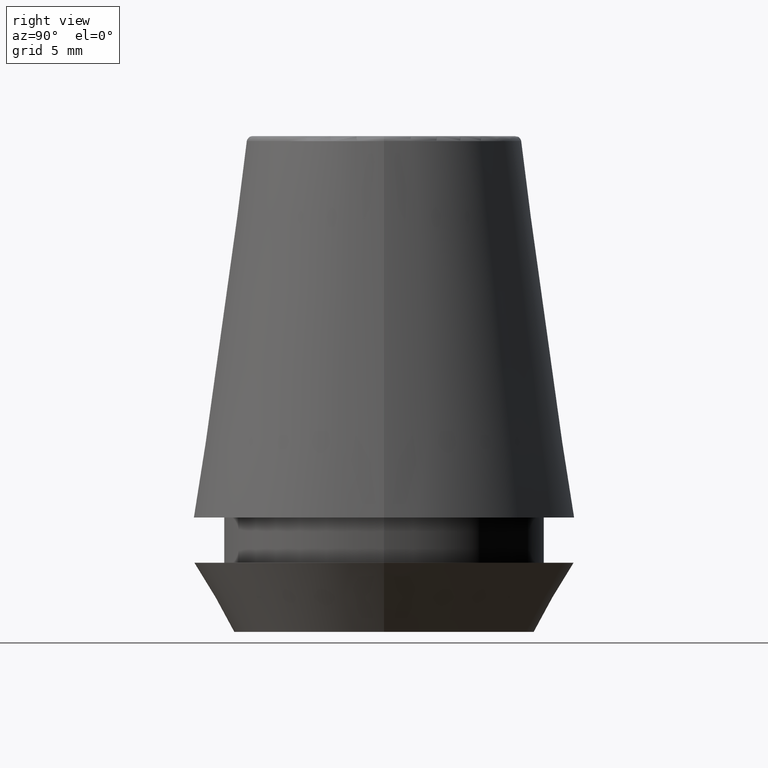
[diagram: clean part render]
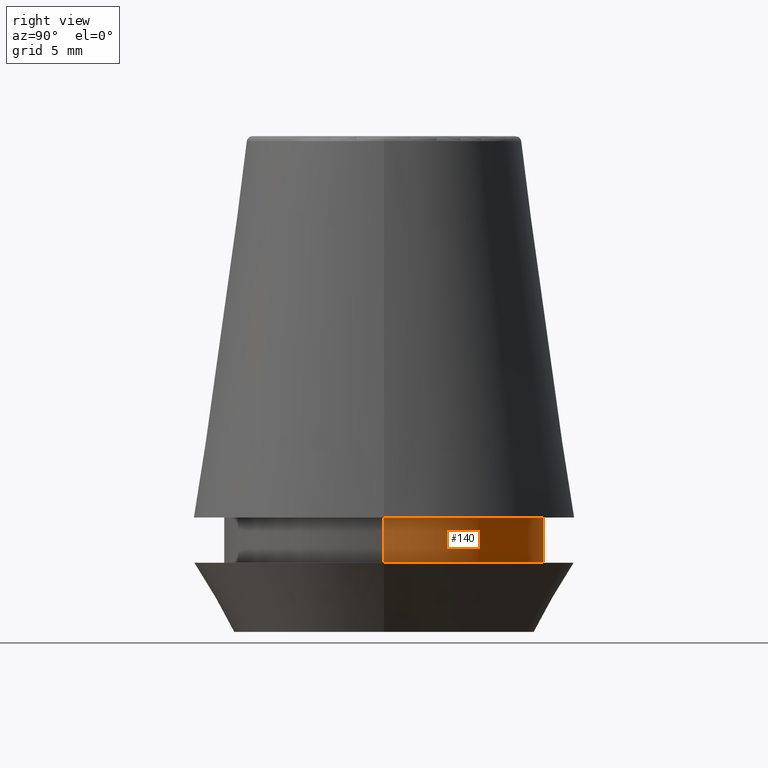
[diagram: same view with one face highlighted and labeled with its STEP entity id]
A machine part, right view. The second image highlights one B-rep face of the part: STEP entity #140.
In plain terms, the highlighted cylindrical surface (partial cylindrical patch) has radius 11 mm, axis along (-0, -0, 1).
Its self-contained STEP definition (entity closure, byte-faithful):
#10 = DIRECTION ( 'NONE',  ( -0.0000000000000000000, -0.0000000000000000000, 1.000000000000000000 ) ) ;
#19 = CIRCLE ( 'NONE', #275, 11.00000000000000000 ) ;
#31 = CYLINDRICAL_SURFACE ( 'NONE', #169, 11.00000000000000000 ) ;
#36 = DIRECTION ( 'NONE',  ( -0.0000000000000000000, -0.0000000000000000000, 1.000000000000000000 ) ) ;
#62 = VERTEX_POINT ( 'NONE', #252 ) ;
#71 = ORIENTED_EDGE ( 'NONE', *, *, #232, .T. ) ;
#78 = VECTOR ( 'NONE', #36, 1000.000000000000000 ) ;
#79 = ORIENTED_EDGE ( 'NONE', *, *, #259, .F. ) ;
#92 = VERTEX_POINT ( 'NONE', #306 ) ;
#105 = EDGE_LOOP ( 'NONE', ( #71, #124, #276, #79 ) ) ;
#114 = DIRECTION ( 'NONE',  ( -0.0000000000000000000, -0.0000000000000000000, 1.000000000000000000 ) ) ;
#124 = ORIENTED_EDGE ( 'NONE', *, *, #138, .T. ) ;
#127 = CARTESIAN_POINT ( 'NONE',  ( 11.00000000000000000, 0.0000000000000000000, 4.742050807568884500 ) ) ;
#138 = EDGE_CURVE ( 'NONE', #371, #92, #313, .T. ) ;
#140 = ADVANCED_FACE ( 'NONE', ( #215 ), #31, .T. ) ;
#169 = AXIS2_PLACEMENT_3D ( 'NONE', #277, #10, #184 ) ;
#172 = CARTESIAN_POINT ( 'NONE',  ( -11.00000000000000000, 1.347111479062088400E-015, 4.742050807568884500 ) ) ;
#177 = CARTESIAN_POINT ( 'NONE',  ( 0.0000000000000000000, 0.0000000000000000000, 4.742050807568884500 ) ) ;
#181 = DIRECTION ( 'NONE',  ( -0.0000000000000000000, -0.0000000000000000000, 1.000000000000000000 ) ) ;
#184 = DIRECTION ( 'NONE',  ( 1.000000000000000000, 0.0000000000000000000, 0.0000000000000000000 ) ) ;
#188 = EDGE_CURVE ( 'NONE', #62, #92, #19, .T. ) ;
#196 = VERTEX_POINT ( 'NONE', #127 ) ;
#214 = VECTOR ( 'NONE', #387, 1000.000000000000000 ) ;
#215 = FACE_OUTER_BOUND ( 'NONE', #105, .T. ) ;
#232 = EDGE_CURVE ( 'NONE', #196, #371, #238, .T. ) ;
#235 = DIRECTION ( 'NONE',  ( 1.000000000000000000, 0.0000000000000000000, 0.0000000000000000000 ) ) ;
#238 = CIRCLE ( 'NONE', #296, 11.00000000000000000 ) ;
#241 = DIRECTION ( 'NONE',  ( 1.000000000000000000, 0.0000000000000000000, 0.0000000000000000000 ) ) ;
#252 = CARTESIAN_POINT ( 'NONE',  ( 11.00000000000000000, 0.0000000000000000000, 7.842050807568890400 ) ) ;
#259 = EDGE_CURVE ( 'NONE', #196, #62, #341, .T. ) ;
#275 = AXIS2_PLACEMENT_3D ( 'NONE', #365, #181, #241 ) ;
#276 = ORIENTED_EDGE ( 'NONE', *, *, #188, .F. ) ;
#277 = CARTESIAN_POINT ( 'NONE',  ( 0.0000000000000000000, 0.0000000000000000000, 101.8074564848000400 ) ) ;
#296 = AXIS2_PLACEMENT_3D ( 'NONE', #177, #114, #235 ) ;
#306 = CARTESIAN_POINT ( 'NONE',  ( -11.00000000000000000, 1.347111479062088400E-015, 7.842050807568890400 ) ) ;
#313 = LINE ( 'NONE', #366, #78 ) ;
#341 = LINE ( 'NONE', #377, #214 ) ;
#365 = CARTESIAN_POINT ( 'NONE',  ( 0.0000000000000000000, 0.0000000000000000000, 7.842050807568890400 ) ) ;
#366 = CARTESIAN_POINT ( 'NONE',  ( -11.00000000000000000, 1.347111479062088400E-015, 101.8074564848000400 ) ) ;
#371 = VERTEX_POINT ( 'NONE', #172 ) ;
#377 = CARTESIAN_POINT ( 'NONE',  ( 11.00000000000000000, 0.0000000000000000000, 101.8074564848000400 ) ) ;
#387 = DIRECTION ( 'NONE',  ( -0.0000000000000000000, -0.0000000000000000000, 1.000000000000000000 ) ) ;